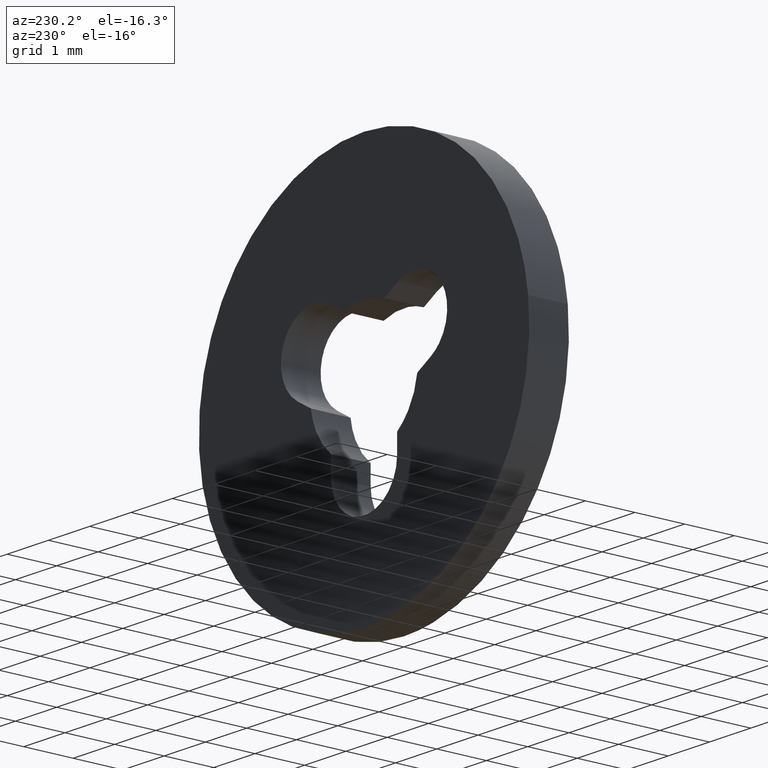
[diagram: clean part render]
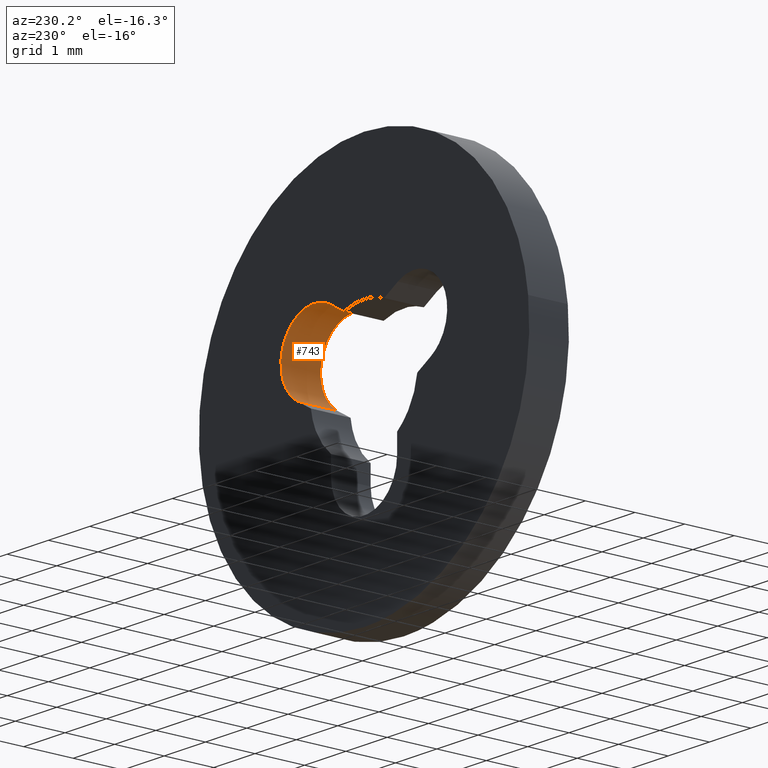
[diagram: same view with one face highlighted and labeled with its STEP entity id]
A machine part, auxiliary view. The second image highlights one B-rep face of the part: STEP entity #743.
In plain terms, the highlighted face is a freeform B-spline surface patch.
Its self-contained STEP definition (entity closure, byte-faithful):
#237=CARTESIAN_POINT('',(1.612399990874480,0.0,0.007099994732456));
#238=VERTEX_POINT('',#237);
#244=CARTESIAN_POINT('',(1.612399990874480,0.800000000000000,0.007099994732456));
#245=VERTEX_POINT('',#244);
#246=CARTESIAN_POINT('',(1.612399990874480,0.800000000000000,0.007099994732456));
#247=CARTESIAN_POINT('',(1.612399990874480,0.0,0.007099994732456));
#248=QUASI_UNIFORM_CURVE('',1,(#246,#247),.UNSPECIFIED.,.F.,.U.);
#249=EDGE_CURVE('',#245,#238,#248,.T.);
#668=CARTESIAN_POINT('',(0.816907166694791,0.0,1.395403062118820));
#669=VERTEX_POINT('',#668);
#676=CARTESIAN_POINT('',(0.816907166694791,0.800000000000023,1.395403062118820));
#677=VERTEX_POINT('',#676);
#683=CARTESIAN_POINT('',(0.816907166694791,0.800000000000023,1.395403062118820));
#684=CARTESIAN_POINT('',(0.816907166694791,0.0,1.395403062118820));
#685=QUASI_UNIFORM_CURVE('',1,(#683,#684),.UNSPECIFIED.,.F.,.U.);
#686=EDGE_CURVE('',#677,#669,#685,.T.);
#691=CARTESIAN_POINT('',(0.794489227279388,0.820000000000024,1.382164895347612));
#692=CARTESIAN_POINT('',(0.794489227279388,-0.020500000000001,1.382164895347612));
#693=CARTESIAN_POINT('',(1.513355826762346,0.820000000000024,1.822598278480180));
#694=CARTESIAN_POINT('',(1.513355826762346,-0.020500000000001,1.822598278480180));
#695=CARTESIAN_POINT('',(1.915563040355352,0.820000000000024,1.081666358420353));
#696=CARTESIAN_POINT('',(1.915563040355352,-0.020500000000001,1.081666358420353));
#697=CARTESIAN_POINT('',(2.317770253948357,0.820000000000024,0.340734438360525));
#698=CARTESIAN_POINT('',(2.317770253948357,-0.020500000000001,0.340734438360525));
#699=CARTESIAN_POINT('',(1.556803856203000,0.820000000000024,-0.022144183677540));
#700=CARTESIAN_POINT('',(1.556803856203000,-0.020500000000001,-0.022144183677540));
#708=(BOUNDED_SURFACE()B_SPLINE_SURFACE(1,2,((#691,#693,#695,#697,#699),(#692,#694,#696,#698,#700)),.UNSPECIFIED.,.F.,.F.,.U.)B_SPLINE_SURFACE_WITH_KNOTS((2,2),(3,2,3),(0.0,1.0),(0.0,1.0,2.0),.UNSPECIFIED.)GEOMETRIC_REPRESENTATION_ITEM()RATIONAL_B_SPLINE_SURFACE(((1.0,0.688354575693754,1.0,0.688354575693754,1.0),(1.0,0.688354575693754,1.0,0.688354575693754,1.0)))REPRESENTATION_ITEM('')SURFACE());
#709=CARTESIAN_POINT('',(1.612399990874479,0.0,0.007099994732456));
#710=CARTESIAN_POINT('',(2.303084817699688,0.0,0.405784516489318));
#711=CARTESIAN_POINT('',(1.906599949379616,0.0,1.097734389737577));
#712=CARTESIAN_POINT('',(1.510115081059544,0.0,1.789684262985836));
#713=CARTESIAN_POINT('',(0.816907166694791,0.0,1.395403062118821));
#721=(BOUNDED_CURVE()B_SPLINE_CURVE(2,(#709,#710,#711,#712,#713),.UNSPECIFIED.,.F.,.U.)B_SPLINE_CURVE_WITH_KNOTS((3,2,3),(0.0,0.500000000000000,1.0),.UNSPECIFIED.)CURVE()GEOMETRIC_REPRESENTATION_ITEM()RATIONAL_B_SPLINE_CURVE((1.0,0.708230831269535,1.0,0.708230831269535,1.0))REPRESENTATION_ITEM(''));
#722=EDGE_CURVE('',#238,#669,#721,.T.);
#723=ORIENTED_EDGE('',*,*,#722,.T.);
#724=ORIENTED_EDGE('',*,*,#686,.F.);
#725=CARTESIAN_POINT('',(1.612399990874480,0.800000000000000,0.007099994732456));
#726=CARTESIAN_POINT('',(2.303084817699688,0.800000000000023,0.405784516489319));
#727=CARTESIAN_POINT('',(1.906599949379616,0.800000000000023,1.097734389737577));
#728=CARTESIAN_POINT('',(1.510115081059544,0.800000000000023,1.789684262985835));
#729=CARTESIAN_POINT('',(0.816907166694791,0.800000000000023,1.395403062118821));
#737=(BOUNDED_CURVE()B_SPLINE_CURVE(2,(#725,#726,#727,#728,#729),.UNSPECIFIED.,.F.,.U.)B_SPLINE_CURVE_WITH_KNOTS((3,2,3),(0.0,0.500000000000000,1.0),.UNSPECIFIED.)CURVE()GEOMETRIC_REPRESENTATION_ITEM()RATIONAL_B_SPLINE_CURVE((1.0,0.708230831269536,1.0,0.708230831269536,1.0))REPRESENTATION_ITEM(''));
#738=EDGE_CURVE('',#245,#677,#737,.T.);
#739=ORIENTED_EDGE('',*,*,#738,.F.);
#740=ORIENTED_EDGE('',*,*,#249,.T.);
#741=EDGE_LOOP('',(#723,#724,#739,#740));
#742=FACE_OUTER_BOUND('',#741,.T.);
#743=ADVANCED_FACE('',(#742),#708,.F.);